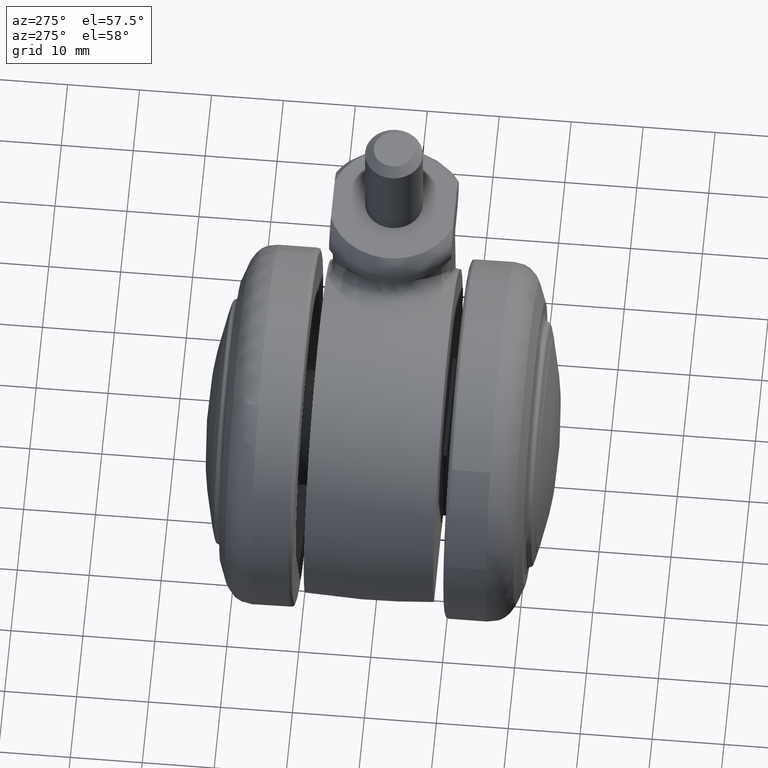
[diagram: clean part render]
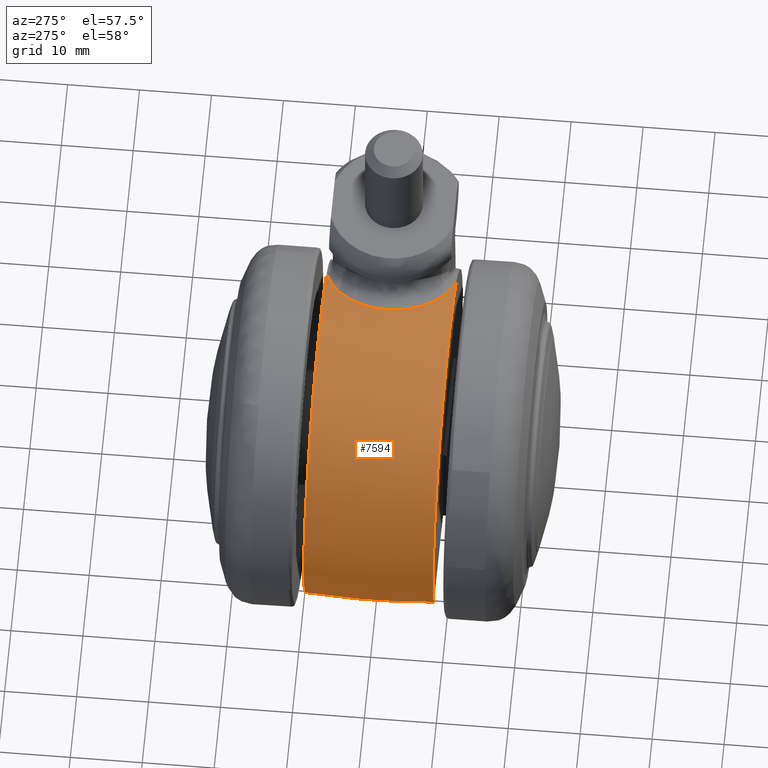
[diagram: same view with one face highlighted and labeled with its STEP entity id]
A machine part, auxiliary view. The second image highlights one B-rep face of the part: STEP entity #7594.
In plain terms, the highlighted face is a freeform B-spline surface patch.
Its self-contained STEP definition (entity closure, byte-faithful):
#6242=CARTESIAN_POINT('',(13.588231695146179,9.0,19.173156694149551));
#6243=VERTEX_POINT('',#6242);
#6454=CARTESIAN_POINT('',(13.626917438481060,-8.999999991011920,19.145929833168950));
#6455=VERTEX_POINT('',#6454);
#6456=CARTESIAN_POINT('',(13.626917438481060,-8.999999991011920,19.145929833168950));
#6457=CARTESIAN_POINT('',(13.485970573153541,-8.983746999216494,19.246689409881739));
#6458=CARTESIAN_POINT('',(13.207181752543651,-8.951599051807376,19.445988936633420));
#6459=CARTESIAN_POINT('',(12.788595045147259,-8.881347831777774,19.730417427909781));
#6460=CARTESIAN_POINT('',(12.376595833222650,-8.795469631230754,20.000481243639321));
#6461=CARTESIAN_POINT('',(11.971330356269910,-8.692439253105206,20.256010351060311));
#6462=CARTESIAN_POINT('',(11.573418144091050,-8.572641669069935,20.497800332550280));
#6463=CARTESIAN_POINT('',(11.183311035852711,-8.435965015010472,20.726378111491570));
#6464=CARTESIAN_POINT('',(10.801462589099950,-8.282426195549217,20.942320351350329));
#6465=CARTESIAN_POINT('',(10.428286878670001,-8.112008490127010,21.146168542057492));
#6466=CARTESIAN_POINT('',(10.064171471703659,-7.924704019774821,21.338449474999059));
#6467=CARTESIAN_POINT('',(9.709477880486487,-7.720503992484755,21.519667890574912));
#6468=CARTESIAN_POINT('',(9.364538459949765,-7.499398111555482,21.690308611907611));
#6469=CARTESIAN_POINT('',(9.029678438152853,-7.261388009723592,21.850828939796070));
#6470=CARTESIAN_POINT('',(8.705140862795288,-7.006435965222605,22.001681205582230));
#6471=CARTESIAN_POINT('',(8.052779241007448,-6.441375706537425,22.295968324311090));
#6472=CARTESIAN_POINT('',(7.148738199464537,-5.441129982913077,22.670323636990840));
#6473=CARTESIAN_POINT('',(6.210402163623721,-3.817814088370795,23.019787655634332));
#6474=CARTESIAN_POINT('',(5.593906407246323,-1.984031129060857,23.229612903319211));
#6475=CARTESIAN_POINT('',(5.387940715180545,-0.016547597287704,23.297312674020571));
#6476=CARTESIAN_POINT('',(5.584071074696168,1.951561077320783,23.232537222142401));
#6477=CARTESIAN_POINT('',(6.192399556534373,3.786848496872993,23.025684629214179));
#6478=CARTESIAN_POINT('',(7.121721865453101,5.412673166378905,22.680171332930321));
#6479=CARTESIAN_POINT('',(8.115407867749488,6.522333767458592,22.269907178274700));
#6480=CARTESIAN_POINT('',(8.991756815394941,7.250803424221108,21.870500244365441));
#6481=CARTESIAN_POINT('',(9.674892421136546,7.716126812242630,21.539261217103061));
#6482=CARTESIAN_POINT('',(10.396477830621119,8.112480577359474,21.165871457682471));
#6483=CARTESIAN_POINT('',(11.153788626256150,8.440514302066386,20.746671406847781));
#6484=CARTESIAN_POINT('',(11.943143209463640,8.698862084756364,20.276773847888212));
#6485=CARTESIAN_POINT('',(12.762340361047819,8.893485909384596,19.754648746457079));
#6486=CARTESIAN_POINT('',(13.309119228960860,8.964003241966923,19.369673686259539));
#6487=CARTESIAN_POINT('',(13.588231695146179,9.0,19.173156694149551));
#6488=B_SPLINE_CURVE_WITH_KNOTS('',3,(#6456,#6457,#6458,#6459,#6460,#6461,#6462,#6463,#6464,#6465,#6466,#6467,#6468,#6469,#6470,#6471,#6472,#6473,#6474,#6475,#6476,#6477,#6478,#6479,#6480,#6481,#6482,#6483,#6484,#6485,#6486,#6487),.UNSPECIFIED.,.F.,.U.,(4,1,1,1,1,1,1,1,1,1,1,1,1,1,1,1,1,1,1,1,1,1,1,1,1,1,1,1,1,4),(0.0,0.018384239686145,0.036363494058558,0.053962390012473,0.071206998602815,0.088124850623194,0.104744931471463,0.121097651415106,0.137214787784140,0.153129396404512,0.168875690763016,0.184488888937885,0.200005030148807,0.215460764725340,0.230893123163614,0.296339252874518,0.361960628748432,0.430954999546242,0.500198054534452,0.569384394208857,0.638317394092071,0.703908737427614,0.769117674465491,0.800130197477701,0.831339626800998,0.863036717376356,0.895500426439654,0.928992325793787,0.963752938840840,1.000000000000000),.UNSPECIFIED.);
#6489=EDGE_CURVE('',#6455,#6243,#6488,.T.);
#7329=CARTESIAN_POINT('',(-22.271056962330899,-9.0,-7.500000000000000));
#7330=VERTEX_POINT('',#7329);
#7336=CARTESIAN_POINT('',(-22.271056962330899,9.0,-7.500000000000000));
#7337=VERTEX_POINT('',#7336);
#7338=CARTESIAN_POINT('',(-22.271056962330899,9.0,-7.500000000000000));
#7339=CARTESIAN_POINT('',(-22.326246436391131,8.421113523567511,-7.500000000000000));
#7340=CARTESIAN_POINT('',(-22.376107840399680,7.841567522138998,-7.500000000000000));
#7341=CARTESIAN_POINT('',(-22.607889066678592,4.822462405177966,-7.500000000000000));
#7342=CARTESIAN_POINT('',(-22.701146241926342,2.371928352875127,-7.499999999999999));
#7343=CARTESIAN_POINT('',(-22.697628886571451,-1.321623607242038,-7.499999999999997));
#7344=CARTESIAN_POINT('',(-22.672520384214948,-2.555770472345564,-7.500000000000002));
#7345=CARTESIAN_POINT('',(-22.610680921234270,-4.102223723649644,-7.499999999999999));
#7346=CARTESIAN_POINT('',(-22.596786909220739,-4.411712442788734,-7.500000000000001));
#7347=CARTESIAN_POINT('',(-22.566012359647061,-5.029699530149097,-7.499999999999998));
#7348=CARTESIAN_POINT('',(-22.515351681856671,-5.955708155191383,-7.500000000000001));
#7349=CARTESIAN_POINT('',(-22.451252646681070,-6.878813337347844,-7.500000000000000));
#7350=CARTESIAN_POINT('',(-22.362715623734921,-7.996148128712547,-7.500000000000000));
#7351=CARTESIAN_POINT('',(-22.318867952421201,-8.498502214515414,-7.500000000000000));
#7352=CARTESIAN_POINT('',(-22.271056962330899,-9.0,-7.500000000000000));
#7353=B_SPLINE_CURVE_WITH_KNOTS('',3,(#7338,#7339,#7340,#7341,#7342,#7343,#7344,#7345,#7346,#7347,#7348,#7349,#7350,#7351,#7352),.UNSPECIFIED.,.F.,.U.,(4,2,2,2,2,1,2,4),(0.461315755579124,0.468749999999992,0.499999999999991,0.515624999999991,0.519531249999991,0.523437499999991,0.531249999999991,0.537651572681553),.UNSPECIFIED.);
#7354=EDGE_CURVE('',#7337,#7330,#7353,.T.);
#7431=CARTESIAN_POINT('',(-22.271056962330899,-9.0,-7.500000000000000));
#7432=CARTESIAN_POINT('',(-27.722733978628657,-8.999999998940242,8.688675225275679));
#7433=CARTESIAN_POINT('',(-14.006367899125610,-8.999999995505961,18.869899492688120));
#7434=CARTESIAN_POINT('',(-0.290001819622542,-8.999999992071677,29.051123760100573));
#7435=CARTESIAN_POINT('',(13.626917438481060,-8.999999991011920,19.145929833168950));
#7443=(BOUNDED_CURVE()B_SPLINE_CURVE(2,(#7431,#7432,#7433,#7434,#7435),.UNSPECIFIED.,.F.,.U.)B_SPLINE_CURVE_WITH_KNOTS((3,2,3),(0.0,0.500000000000000,1.0),.UNSPECIFIED.)CURVE()GEOMETRIC_REPRESENTATION_ITEM()RATIONAL_B_SPLINE_CURVE((1.0,0.808882504943221,1.0,0.808882504943221,1.0))REPRESENTATION_ITEM(''));
#7444=EDGE_CURVE('',#7330,#6455,#7443,.T.);
#7457=CARTESIAN_POINT('',(-22.271056962330888,9.0,-7.500000000000004));
#7458=CARTESIAN_POINT('',(-27.716981276559199,9.0,8.671532081962837));
#7459=CARTESIAN_POINT('',(-14.025412138785050,9.0,18.855709813120480));
#7460=CARTESIAN_POINT('',(-0.333843001010914,9.0,29.039887544278116));
#7461=CARTESIAN_POINT('',(13.588231695146179,9.0,19.173156694149551));
#7469=(BOUNDED_CURVE()B_SPLINE_CURVE(2,(#7457,#7458,#7459,#7460,#7461),.UNSPECIFIED.,.F.,.U.)B_SPLINE_CURVE_WITH_KNOTS((3,2,3),(0.0,0.500000000000000,1.0),.UNSPECIFIED.)CURVE()GEOMETRIC_REPRESENTATION_ITEM()RATIONAL_B_SPLINE_CURVE((1.0,0.809178299804896,1.0,0.809178299804896,1.0))REPRESENTATION_ITEM(''));
#7470=EDGE_CURVE('',#7337,#6243,#7469,.T.);
#7559=CARTESIAN_POINT('',(-21.333511952159736,9.894889821027570,-9.651268654892149));
#7560=CARTESIAN_POINT('',(-22.229960108585576,0.000002201552477,-10.056821290213062));
#7561=CARTESIAN_POINT('',(-21.333512347162539,-9.894885461032892,-9.651268833591193));
#7562=CARTESIAN_POINT('',(-23.415074607223566,9.894889821027569,-5.050107567280720));
#7563=CARTESIAN_POINT('',(-24.398991390887215,0.000002201552476,-5.262316397622067));
#7564=CARTESIAN_POINT('',(-23.415075040767761,-9.894885461032887,-5.050107660786496));
#7565=CARTESIAN_POINT('',(-23.415074607223566,9.894889821027569,0.0));
#7566=CARTESIAN_POINT('',(-24.398991390887215,0.000002201552475,0.0));
#7567=CARTESIAN_POINT('',(-23.415075040767753,-9.894885461032891,0.0));
#7568=CARTESIAN_POINT('',(-23.415074607223563,9.894889821027572,23.415074607223563));
#7569=CARTESIAN_POINT('',(-24.398991390887208,0.000002201552479,24.398991390887225));
#7570=CARTESIAN_POINT('',(-23.415075040767746,-9.894885461032889,23.415075040767764));
#7571=CARTESIAN_POINT('',(0.0,9.894889821027569,23.415074607223566));
#7572=CARTESIAN_POINT('',(0.0,0.000002201552475,24.398991390887215));
#7573=CARTESIAN_POINT('',(0.0,-9.894885461032891,23.415075040767753));
#7574=CARTESIAN_POINT('',(8.362800914564645,9.894889821027570,23.415074607223566));
#7575=CARTESIAN_POINT('',(8.714211290841618,0.000002201552477,24.398991390887211));
#7576=CARTESIAN_POINT('',(8.362801069406931,-9.894885461032891,23.415075040767750));
#7577=CARTESIAN_POINT('',(14.833455353721023,9.894889821027572,18.117238231336795));
#7578=CARTESIAN_POINT('',(15.456766871069286,0.000002201552477,18.878536457734310));
#7579=CARTESIAN_POINT('',(14.833455628371363,-9.894885461032894,18.117238566788352));
#7587=(BOUNDED_SURFACE()B_SPLINE_SURFACE(2,2,((#7559,#7562,#7565,#7568,#7571,#7574,#7577),(#7560,#7563,#7566,#7569,#7572,#7575,#7578),(#7561,#7564,#7567,#7570,#7573,#7576,#7579)),.UNSPECIFIED.,.F.,.F.,.U.)B_SPLINE_SURFACE_WITH_KNOTS((3,3),(3,2,2,3),(0.0,19.838453706917559),(0.0,11.090368905838289,50.698833331000927,68.126557678072501),.UNSPECIFIED.)GEOMETRIC_REPRESENTATION_ITEM()RATIONAL_B_SPLINE_SURFACE(((0.778402080064648,0.810251534126535,0.882636647581030,0.624118358828307,0.882636647581030,0.768888600529832,0.755238834883688),(0.774582085213147,0.806275238625722,0.878305123377978,0.621055508691456,0.878305123377978,0.765115292915909,0.751532513260460),(0.778402078373139,0.810251532365816,0.882636645663014,0.624118357472065,0.882636645663014,0.768888598858996,0.755238833242514)))REPRESENTATION_ITEM('')SURFACE());
#7588=ORIENTED_EDGE('',*,*,#7444,.T.);
#7589=ORIENTED_EDGE('',*,*,#6489,.T.);
#7590=ORIENTED_EDGE('',*,*,#7470,.F.);
#7591=ORIENTED_EDGE('',*,*,#7354,.T.);
#7592=EDGE_LOOP('',(#7588,#7589,#7590,#7591));
#7593=FACE_OUTER_BOUND('',#7592,.T.);
#7594=ADVANCED_FACE('',(#7593),#7587,.T.);